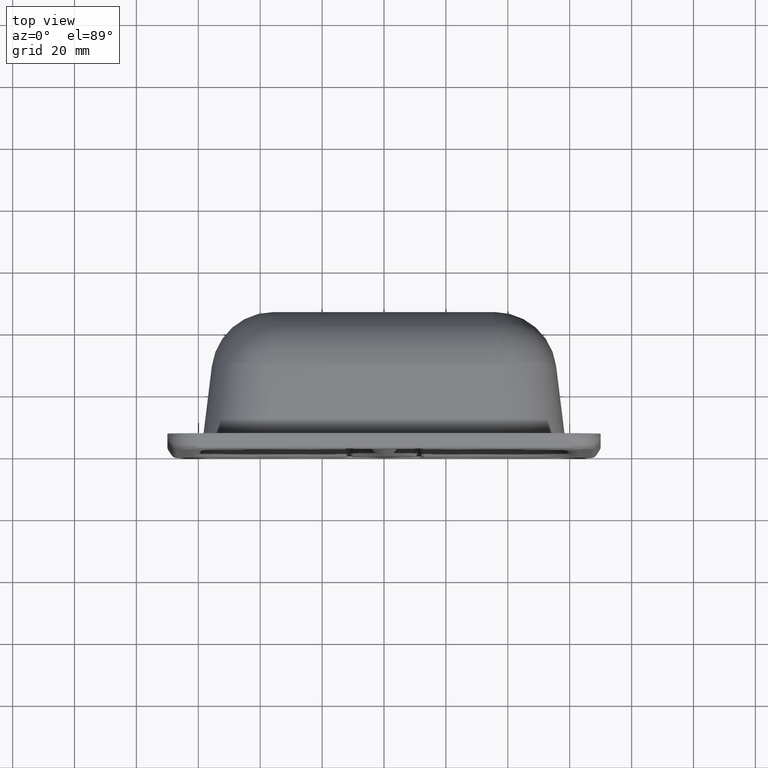
[diagram: clean part render]
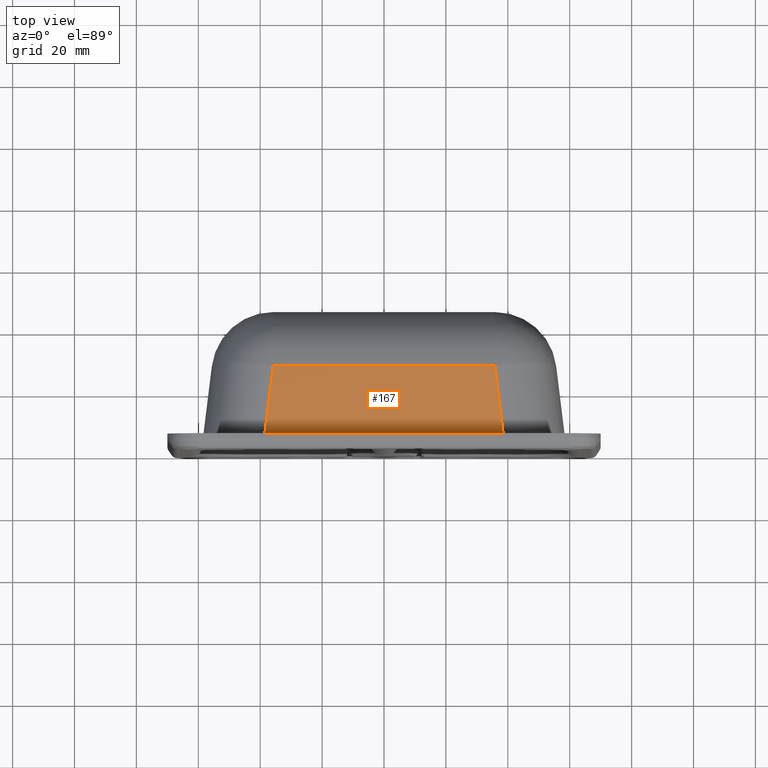
[diagram: same view with one face highlighted and labeled with its STEP entity id]
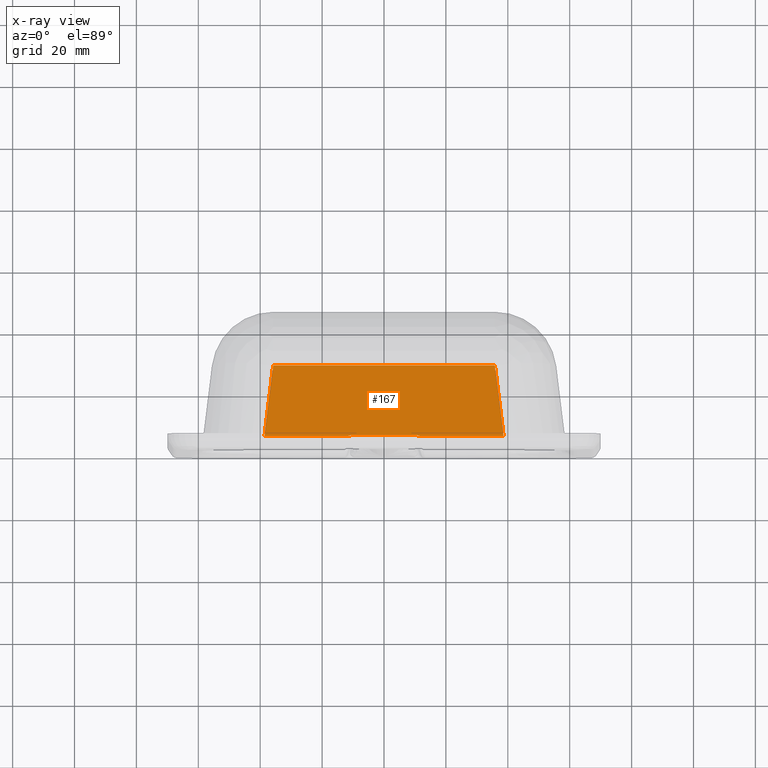
[diagram: x-ray of the same camera — body ghosted, the highlighted face saturated]
A machine part, top view. The second image highlights one B-rep face of the part: STEP entity #167.
The next image is the same camera in x-ray: the body ghosted, the highlighted face saturated — about 0% of this face is hidden behind the body in this view.
In plain terms, the highlighted planar face has unit normal (0, -0.1219, -0.9925).
Its self-contained STEP definition (entity closure, byte-faithful):
#167=ADVANCED_FACE('',(#1721),#1720,.F.);
#1720=PLANE('',#5731);
#1721=FACE_OUTER_BOUND('',#5732,.T.);
#5728=CARTESIAN_POINT('',(-4.63230224201E+01,2.22003620218E+00,6.57349236552E+01));
#5729=DIRECTION('',(0.00000000000E+00,-1.21869343405E-01,-9.92546151641E-01));
#5730=DIRECTION('',(0.00000000000E+00,9.92546151641E-01,-1.21869343405E-01));
#5731=AXIS2_PLACEMENT_3D('',#5728,#5729,#5730);
#5732=EDGE_LOOP('',(#9829,#9830,#9831,#9832,#9833,#9834,#9835,#9836));
#9829=ORIENTED_EDGE('',*,*,#11180,.T.);
#9830=ORIENTED_EDGE('',*,*,#11146,.T.);
#9831=ORIENTED_EDGE('',*,*,#11360,.T.);
#9832=ORIENTED_EDGE('',*,*,#11150,.T.);
#9833=ORIENTED_EDGE('',*,*,#11356,.T.);
#9834=ORIENTED_EDGE('',*,*,#11337,.T.);
#9835=ORIENTED_EDGE('',*,*,#11341,.T.);
#9836=ORIENTED_EDGE('',*,*,#11333,.T.);
#11146=EDGE_CURVE('',#13185,#13178,#13186,.T.);
#11150=EDGE_CURVE('',#13213,#13206,#13214,.T.);
#11180=EDGE_CURVE('',#13407,#13185,#13408,.T.);
#11333=EDGE_CURVE('',#14439,#13407,#14440,.T.);
#11337=EDGE_CURVE('',#14464,#14465,#14466,.T.);
#11341=EDGE_CURVE('',#14465,#14439,#14492,.T.);
#11356=EDGE_CURVE('',#13206,#14464,#14582,.T.);
#11360=EDGE_CURVE('',#13178,#13213,#14607,.T.);
#13178=VERTEX_POINT('',#18587);
#13185=VERTEX_POINT('',#18592);
#13186=(BOUNDED_CURVE() B_SPLINE_CURVE(2,(#18593,#18594,#18595),.UNSPECIFIED.,.F.,.F.) B_SPLINE_CURVE_WITH_KNOTS((3,3),(2.66101634684E+00,3.14159265359E+00),.UNSPECIFIED.) CURVE() GEOMETRIC_REPRESENTATION_ITEM() RATIONAL_B_SPLINE_CURVE((1.00000000000E+00,9.71269439713E-01,1.00000000000E+00)) REPRESENTATION_ITEM('') );
#13206=VERTEX_POINT('',#18605);
#13213=VERTEX_POINT('',#18610);
#13214=(BOUNDED_CURVE() B_SPLINE_CURVE(2,(#18611,#18612,#18613),.UNSPECIFIED.,.F.,.F.) B_SPLINE_CURVE_WITH_KNOTS((3,3),(-3.14159265359E+00,-2.66101634684E+00),.UNSPECIFIED.) CURVE() GEOMETRIC_REPRESENTATION_ITEM() RATIONAL_B_SPLINE_CURVE((1.00000000000E+00,9.71269439712E-01,1.00000000000E+00)) REPRESENTATION_ITEM('') );
#13407=VERTEX_POINT('',#18746);
#13408=LINE('',#18747,#18748);
#14439=VERTEX_POINT('',#19412);
#14440=LINE('',#19413,#19414);
#14464=VERTEX_POINT('',#19428);
#14465=VERTEX_POINT('',#19429);
#14466=LINE('',#19430,#19431);
#14492=LINE('',#19445,#19446);
#14582=LINE('',#19501,#19502);
#14607=LINE('',#19526,#19527);
#18587=CARTESIAN_POINT('',(-1.07290624349E+01,4.73906532830E+00,6.54256257700E+01));
#18592=CARTESIAN_POINT('',(-1.16536429948E+01,4.51252262638E+00,6.54534417162E+01));
#18593=CARTESIAN_POINT('',(-1.16536429948E+01,4.51252262638E+00,6.54534417162E+01));
#18594=CARTESIAN_POINT('',(-1.12191067030E+01,4.73906532830E+00,6.54256257700E+01));
#18595=CARTESIAN_POINT('',(-1.07290624349E+01,4.73906532830E+00,6.54256257700E+01));
#18605=CARTESIAN_POINT('',(1.16536429948E+01,4.51252262638E+00,6.54534417162E+01));
#18610=CARTESIAN_POINT('',(1.07290624349E+01,4.73906532830E+00,6.54256257700E+01));
#18611=CARTESIAN_POINT('',(1.07290624349E+01,4.73906532830E+00,6.54256257700E+01));
#18612=CARTESIAN_POINT('',(1.12191067030E+01,4.73906532830E+00,6.54256257700E+01));
#18613=CARTESIAN_POINT('',(1.16536429948E+01,4.51252262637E+00,6.54534417162E+01));
#18746=CARTESIAN_POINT('',(-3.86025186834E+01,4.51252262638E+00,6.54534417162E+01));
#18747=CARTESIAN_POINT('',(-3.86025186834E+01,4.51252262638E+00,6.54534417162E+01));
#18748=VECTOR('',#18749,2.69488756885E+01);
#18749=DIRECTION('',(1.00000000000E+00,0.00000000000E+00,0.00000000000E+00));
#19412=CARTESIAN_POINT('',(-3.57876992937E+01,2.74373868681E+01,6.26386223265E+01));
#19413=CARTESIAN_POINT('',(-3.57876992937E+01,2.74373868681E+01,6.26386223265E+01));
#19414=VECTOR('',#19415,2.32679138922E+01);
#19415=DIRECTION('',(-1.20974291151E-01,-9.85256536015E-01,1.20974291151E-01));
#19428=CARTESIAN_POINT('',(3.86025186834E+01,4.51252262637E+00,6.54534417162E+01));
#19429=CARTESIAN_POINT('',(3.57876992937E+01,2.74373868681E+01,6.26386223265E+01));
#19430=CARTESIAN_POINT('',(3.86025186834E+01,4.51252262636E+00,6.54534417162E+01));
#19431=VECTOR('',#19432,2.32679138922E+01);
#19432=DIRECTION('',(-1.20974291151E-01,9.85256536015E-01,-1.20974291151E-01));
#19445=CARTESIAN_POINT('',(3.57876992937E+01,2.74373868681E+01,6.26386223265E+01));
#19446=VECTOR('',#19447,7.15753985874E+01);
#19447=DIRECTION('',(-1.00000000000E+00,0.00000000000E+00,0.00000000000E+00));
#19501=CARTESIAN_POINT('',(1.16536429948E+01,4.51252262638E+00,6.54534417162E+01));
#19502=VECTOR('',#19503,2.69488756886E+01);
#19503=DIRECTION('',(1.00000000000E+00,0.00000000000E+00,0.00000000000E+00));
#19526=CARTESIAN_POINT('',(-1.07290624348E+01,4.73906532830E+00,6.54256257700E+01));
#19527=VECTOR('',#19528,2.14581248697E+01);
#19528=DIRECTION('',(1.00000000000E+00,0.00000000000E+00,0.00000000000E+00));